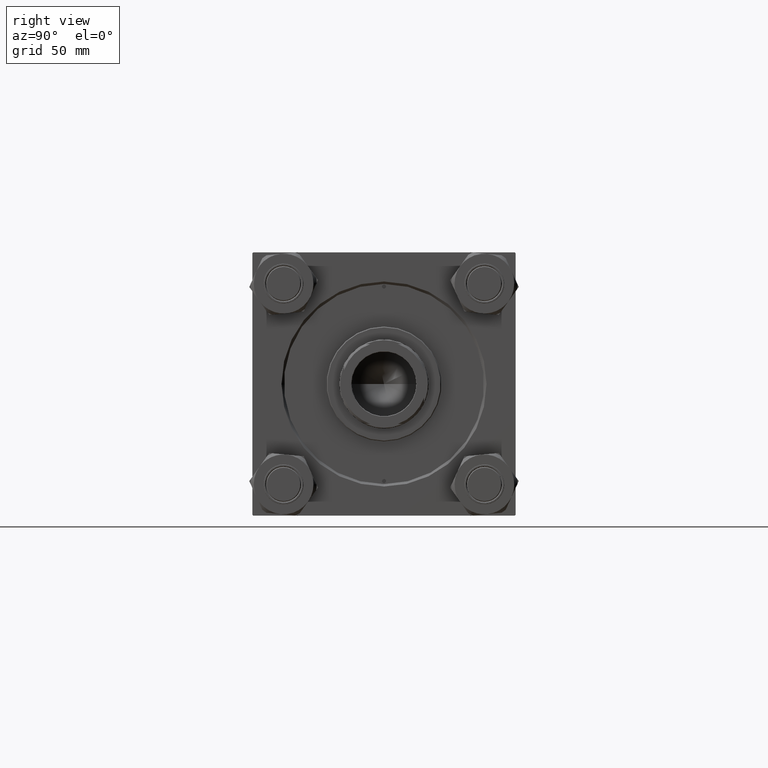
[diagram: clean part render]
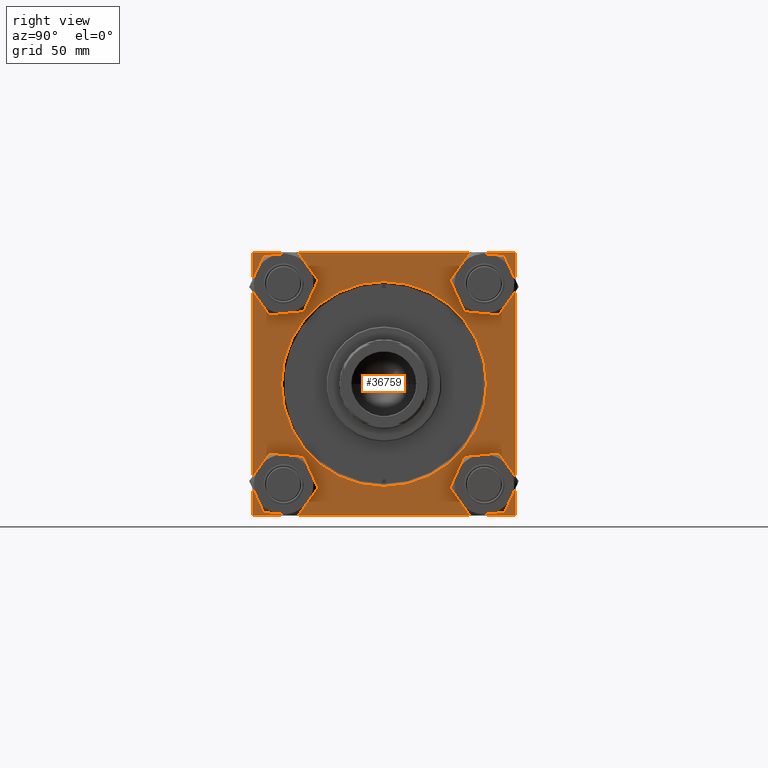
[diagram: same view with one face highlighted and labeled with its STEP entity id]
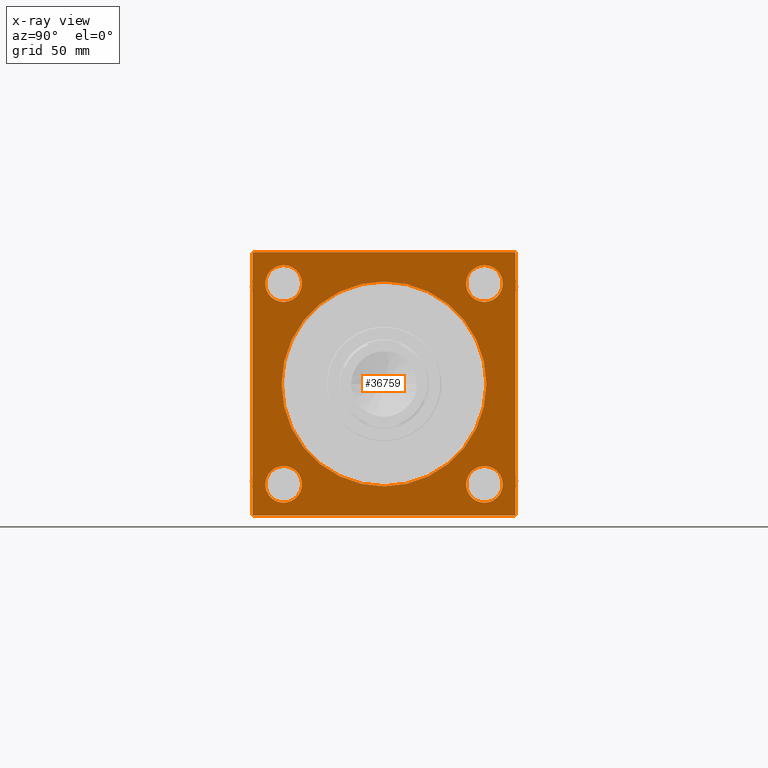
[diagram: x-ray of the same camera — body ghosted, the highlighted face saturated]
A machine part, right view. The second image highlights one B-rep face of the part: STEP entity #36759.
The next image is the same camera in x-ray: the body ghosted, the highlighted face saturated — about 0% of this face is hidden behind the body in this view.
In plain terms, the highlighted planar face has unit normal (-1, 0, 0).
Its self-contained STEP definition (entity closure, byte-faithful):
#684 = VERTEX_POINT ( 'NONE', #42051 ) ;
#864 = EDGE_LOOP ( 'NONE', ( #6996, #3208 ) ) ;
#1350 = DIRECTION ( 'NONE',  ( 0.000000000000000000, -1.000000000000000000, 0.000000000000000000 ) ) ;
#1365 = EDGE_CURVE ( 'NONE', #27444, #47342, #41619, .T. ) ;
#1606 = FACE_BOUND ( 'NONE', #36054, .T. ) ;
#1811 = EDGE_CURVE ( 'NONE', #26190, #6788, #6972, .T. ) ;
#1919 = CIRCLE ( 'NONE', #32889, 64.24999999999997158 ) ;
#2117 = DIRECTION ( 'NONE',  ( -1.000000000000000000, -0.000000000000000000, 0.000000000000000000 ) ) ;
#2161 = VERTEX_POINT ( 'NONE', #14343 ) ;
#2834 = CARTESIAN_POINT ( 'NONE',  ( 276.9999999999999432, -82.50000000000000000, -82.00000000000002842 ) ) ;
#2938 = VERTEX_POINT ( 'NONE', #41165 ) ;
#3082 = CARTESIAN_POINT ( 'NONE',  ( 276.9999999999999432, 82.00000000000001421, 82.50000000000000000 ) ) ;
#3110 = CARTESIAN_POINT ( 'NONE',  ( 276.9999999999999432, 62.95000000000000284, -62.95000000000000284 ) ) ;
#3115 = DIRECTION ( 'NONE',  ( 0.000000000000000000, 0.7071067811865574537, -0.7071067811865376918 ) ) ;
#3124 = CARTESIAN_POINT ( 'NONE',  ( 276.9999999999999432, 62.95000000000000284, 62.95000000000000284 ) ) ;
#3208 = ORIENTED_EDGE ( 'NONE', *, *, #38162, .T. ) ;
#3454 = CARTESIAN_POINT ( 'NONE',  ( 276.9999999999999432, -62.94999999999998153, -62.95000000000001705 ) ) ;
#4027 = CARTESIAN_POINT ( 'NONE',  ( 276.9999999999999432, 0.000000000000000000, 0.000000000000000000 ) ) ;
#4172 = CARTESIAN_POINT ( 'NONE',  ( 276.9999999999999432, 0.000000000000000000, 0.000000000000000000 ) ) ;
#4913 = CARTESIAN_POINT ( 'NONE',  ( 276.9999999999999432, 62.95000000000000284, -51.45000000000005258 ) ) ;
#5308 = ORIENTED_EDGE ( 'NONE', *, *, #45016, .T. ) ;
#5362 = ORIENTED_EDGE ( 'NONE', *, *, #23062, .T. ) ;
#5374 = CARTESIAN_POINT ( 'NONE',  ( 276.9999999999999432, 62.95000000000000284, -62.95000000000000284 ) ) ;
#5728 = EDGE_CURVE ( 'NONE', #46033, #18080, #39440, .T. ) ;
#5779 = DIRECTION ( 'NONE',  ( 0.000000000000000000, 0.000000000000000000, 1.000000000000000000 ) ) ;
#6788 = VERTEX_POINT ( 'NONE', #2834 ) ;
#6972 = LINE ( 'NONE', #42182, #45383 ) ;
#6996 = ORIENTED_EDGE ( 'NONE', *, *, #39920, .T. ) ;
#7116 = DIRECTION ( 'NONE',  ( 0.000000000000000000, 0.000000000000000000, -1.000000000000000000 ) ) ;
#7218 = EDGE_LOOP ( 'NONE', ( #11352, #43109 ) ) ;
#7830 = CARTESIAN_POINT ( 'NONE',  ( 276.9999999999999432, 82.50000000000001421, 82.50000000000000000 ) ) ;
#8570 = DIRECTION ( 'NONE',  ( -0.000000000000000000, 0.7071067811865474617, 0.7071067811865474617 ) ) ;
#9121 = VECTOR ( 'NONE', #1350, 1000.000000000000000 ) ;
#9213 = EDGE_CURVE ( 'NONE', #31072, #24679, #48083, .T. ) ;
#9511 = FACE_BOUND ( 'NONE', #37927, .T. ) ;
#9760 = PLANE ( 'NONE',  #39189 ) ;
#10010 = CIRCLE ( 'NONE', #12478, 11.49999999999995381 ) ;
#10022 = CARTESIAN_POINT ( 'NONE',  ( 276.9999999999999432, 62.95000000000000284, -74.44999999999996021 ) ) ;
#10259 = VERTEX_POINT ( 'NONE', #29070 ) ;
#10274 = CARTESIAN_POINT ( 'NONE',  ( 276.9999999999999432, -81.99999999999998579, -82.50000000000002842 ) ) ;
#10318 = ORIENTED_EDGE ( 'NONE', *, *, #1811, .T. ) ;
#10463 = VECTOR ( 'NONE', #8570, 1000.000000000000114 ) ;
#11023 = CARTESIAN_POINT ( 'NONE',  ( 276.9999999999999432, 0.000000000000000000, -64.24999999999997158 ) ) ;
#11352 = ORIENTED_EDGE ( 'NONE', *, *, #44492, .T. ) ;
#12478 = AXIS2_PLACEMENT_3D ( 'NONE', #3454, #42224, #26423 ) ;
#12652 = DIRECTION ( 'NONE',  ( 0.000000000000000000, 0.000000000000000000, 1.000000000000000000 ) ) ;
#13007 = CARTESIAN_POINT ( 'NONE',  ( 276.9999999999999432, -82.49999999999997158, 81.99999999999997158 ) ) ;
#13108 = FACE_BOUND ( 'NONE', #45236, .T. ) ;
#13392 = VERTEX_POINT ( 'NONE', #45958 ) ;
#13757 = CARTESIAN_POINT ( 'NONE',  ( 276.9999999999999432, 62.95000000000000284, 74.44999999999996021 ) ) ;
#14235 = EDGE_CURVE ( 'NONE', #46033, #46732, #36320, .T. ) ;
#14343 = CARTESIAN_POINT ( 'NONE',  ( 276.9999999999999432, -62.94999999999998153, -74.44999999999997442 ) ) ;
#14583 = DIRECTION ( 'NONE',  ( -1.000000000000000000, -0.000000000000000000, 0.000000000000000000 ) ) ;
#14795 = LINE ( 'NONE', #48974, #41661 ) ;
#15250 = LINE ( 'NONE', #7830, #29063 ) ;
#15779 = DIRECTION ( 'NONE',  ( -1.000000000000000000, -0.000000000000000000, 0.000000000000000000 ) ) ;
#16687 = CARTESIAN_POINT ( 'NONE',  ( 276.9999999999999432, 82.50000000000001421, -82.50000000000002842 ) ) ;
#16776 = EDGE_CURVE ( 'NONE', #24679, #31072, #45743, .T. ) ;
#16961 = VECTOR ( 'NONE', #33727, 1000.000000000000114 ) ;
#17184 = DIRECTION ( 'NONE',  ( -1.000000000000000000, -0.000000000000000000, 0.000000000000000000 ) ) ;
#17231 = VECTOR ( 'NONE', #3115, 999.9999999999998863 ) ;
#17279 = CARTESIAN_POINT ( 'NONE',  ( 276.9999999999999432, -62.94999999999998153, -62.95000000000001705 ) ) ;
#17378 = AXIS2_PLACEMENT_3D ( 'NONE', #39426, #31783, #12652 ) ;
#17618 = DIRECTION ( 'NONE',  ( 0.000000000000000000, 0.000000000000000000, 1.000000000000000000 ) ) ;
#17686 = DIRECTION ( 'NONE',  ( 0.000000000000000000, 0.000000000000000000, 1.000000000000000000 ) ) ;
#17975 = VERTEX_POINT ( 'NONE', #11023 ) ;
#18080 = VERTEX_POINT ( 'NONE', #40332 ) ;
#18297 = CARTESIAN_POINT ( 'NONE',  ( 276.9999999999999432, -81.99999999999998579, -82.50000000000002842 ) ) ;
#18684 = DIRECTION ( 'NONE',  ( -1.000000000000000000, -0.000000000000000000, 0.000000000000000000 ) ) ;
#18948 = LINE ( 'NONE', #10274, #17231 ) ;
#18975 = CIRCLE ( 'NONE', #47493, 11.49999999999995381 ) ;
#19232 = CARTESIAN_POINT ( 'NONE',  ( 276.9999999999999432, 82.00000000000001421, -82.50000000000002842 ) ) ;
#19337 = DIRECTION ( 'NONE',  ( 0.000000000000000000, 0.000000000000000000, 1.000000000000000000 ) ) ;
#19743 = DIRECTION ( 'NONE',  ( 0.000000000000000000, 0.000000000000000000, 1.000000000000000000 ) ) ;
#20853 = ORIENTED_EDGE ( 'NONE', *, *, #5728, .T. ) ;
#21499 = DIRECTION ( 'NONE',  ( 0.000000000000000000, 0.000000000000000000, 1.000000000000000000 ) ) ;
#22052 = EDGE_CURVE ( 'NONE', #47342, #2938, #15250, .T. ) ;
#22891 = DIRECTION ( 'NONE',  ( 0.000000000000000000, -1.000000000000000000, -1.682156097916904081E-16 ) ) ;
#23062 = EDGE_CURVE ( 'NONE', #17975, #684, #50284, .T. ) ;
#23369 = DIRECTION ( 'NONE',  ( -0.000000000000000000, -0.7071067811865574537, -0.7071067811865376918 ) ) ;
#23753 = AXIS2_PLACEMENT_3D ( 'NONE', #32763, #2117, #17686 ) ;
#23886 = LINE ( 'NONE', #43534, #41624 ) ;
#24252 = ORIENTED_EDGE ( 'NONE', *, *, #22052, .T. ) ;
#24287 = ORIENTED_EDGE ( 'NONE', *, *, #14235, .F. ) ;
#24508 = CIRCLE ( 'NONE', #44856, 11.49999999999995381 ) ;
#24679 = VERTEX_POINT ( 'NONE', #34532 ) ;
#25218 = VERTEX_POINT ( 'NONE', #13757 ) ;
#25323 = CARTESIAN_POINT ( 'NONE',  ( 276.9999999999999432, 0.000000000000000000, 0.000000000000000000 ) ) ;
#26125 = DIRECTION ( 'NONE',  ( 0.000000000000000000, -1.682156097916903834E-16, -1.000000000000000000 ) ) ;
#26190 = VERTEX_POINT ( 'NONE', #13007 ) ;
#26423 = DIRECTION ( 'NONE',  ( 0.000000000000000000, 0.000000000000000000, 1.000000000000000000 ) ) ;
#26817 = CARTESIAN_POINT ( 'NONE',  ( 276.9999999999999432, 82.00000000000001421, 82.50000000000000000 ) ) ;
#26893 = CIRCLE ( 'NONE', #48930, 11.49999999999995381 ) ;
#27101 = DIRECTION ( 'NONE',  ( -1.000000000000000000, -0.000000000000000000, 0.000000000000000000 ) ) ;
#27444 = VERTEX_POINT ( 'NONE', #38350 ) ;
#28983 = CARTESIAN_POINT ( 'NONE',  ( 276.9999999999999432, -62.94999999999998153, 74.44999999999997442 ) ) ;
#29063 = VECTOR ( 'NONE', #22891, 1000.000000000000000 ) ;
#29070 = CARTESIAN_POINT ( 'NONE',  ( 276.9999999999999432, 62.95000000000000284, 51.45000000000005258 ) ) ;
#29145 = FACE_BOUND ( 'NONE', #7218, .T. ) ;
#29263 = ORIENTED_EDGE ( 'NONE', *, *, #46088, .T. ) ;
#30165 = AXIS2_PLACEMENT_3D ( 'NONE', #44934, #14583, #37044 ) ;
#30816 = ORIENTED_EDGE ( 'NONE', *, *, #35679, .T. ) ;
#31072 = VERTEX_POINT ( 'NONE', #28983 ) ;
#31783 = DIRECTION ( 'NONE',  ( -1.000000000000000000, -0.000000000000000000, 0.000000000000000000 ) ) ;
#32230 = DIRECTION ( 'NONE',  ( -1.000000000000000000, -0.000000000000000000, 0.000000000000000000 ) ) ;
#32763 = CARTESIAN_POINT ( 'NONE',  ( 276.9999999999999432, -62.94999999999998153, 62.95000000000001705 ) ) ;
#32889 = AXIS2_PLACEMENT_3D ( 'NONE', #4172, #32230, #19743 ) ;
#33727 = DIRECTION ( 'NONE',  ( 0.000000000000000000, -0.7071067811865474617, 0.7071067811865474617 ) ) ;
#34532 = CARTESIAN_POINT ( 'NONE',  ( 276.9999999999999432, -62.94999999999998153, 51.45000000000006679 ) ) ;
#35679 = EDGE_CURVE ( 'NONE', #10259, #25218, #24508, .T. ) ;
#36054 = EDGE_LOOP ( 'NONE', ( #30816, #5308 ) ) ;
#36320 = LINE ( 'NONE', #16687, #9121 ) ;
#36368 = ORIENTED_EDGE ( 'NONE', *, *, #16776, .T. ) ;
#36759 = ADVANCED_FACE ( 'NONE', ( #29145, #40143, #1606, #13108, #9511, #48040 ), #9760, .F. ) ;
#36766 = DIRECTION ( 'NONE',  ( -1.000000000000000000, -0.000000000000000000, 0.000000000000000000 ) ) ;
#37044 = DIRECTION ( 'NONE',  ( 0.000000000000000000, 0.000000000000000000, 1.000000000000000000 ) ) ;
#37178 = EDGE_CURVE ( 'NONE', #27444, #18080, #14795, .T. ) ;
#37927 = EDGE_LOOP ( 'NONE', ( #5362, #29263 ) ) ;
#38162 = EDGE_CURVE ( 'NONE', #45210, #39913, #26893, .T. ) ;
#38249 = ORIENTED_EDGE ( 'NONE', *, *, #9213, .T. ) ;
#38350 = CARTESIAN_POINT ( 'NONE',  ( 276.9999999999999432, 82.50000000000001421, 82.00000000000000000 ) ) ;
#38369 = AXIS2_PLACEMENT_3D ( 'NONE', #3110, #18684, #48782 ) ;
#38579 = DIRECTION ( 'NONE',  ( 0.000000000000000000, 0.000000000000000000, 1.000000000000000000 ) ) ;
#38921 = ORIENTED_EDGE ( 'NONE', *, *, #37178, .F. ) ;
#39189 = AXIS2_PLACEMENT_3D ( 'NONE', #25323, #17184, #21499 ) ;
#39404 = ORIENTED_EDGE ( 'NONE', *, *, #39533, .T. ) ;
#39426 = CARTESIAN_POINT ( 'NONE',  ( 276.9999999999999432, 62.95000000000000284, 62.95000000000000284 ) ) ;
#39440 = LINE ( 'NONE', #43005, #10463 ) ;
#39533 = EDGE_CURVE ( 'NONE', #2938, #26190, #23886, .T. ) ;
#39913 = VERTEX_POINT ( 'NONE', #10022 ) ;
#39920 = EDGE_CURVE ( 'NONE', #39913, #45210, #48968, .T. ) ;
#40143 = FACE_BOUND ( 'NONE', #864, .T. ) ;
#40203 = CIRCLE ( 'NONE', #17378, 11.49999999999995381 ) ;
#40332 = CARTESIAN_POINT ( 'NONE',  ( 276.9999999999999432, 82.50000000000001421, -82.00000000000002842 ) ) ;
#40770 = EDGE_CURVE ( 'NONE', #6788, #46732, #18948, .T. ) ;
#41165 = CARTESIAN_POINT ( 'NONE',  ( 276.9999999999999432, -81.99999999999995737, 82.49999999999997158 ) ) ;
#41619 = LINE ( 'NONE', #3082, #16961 ) ;
#41624 = VECTOR ( 'NONE', #23369, 999.9999999999998863 ) ;
#41661 = VECTOR ( 'NONE', #7116, 1000.000000000000000 ) ;
#42051 = CARTESIAN_POINT ( 'NONE',  ( 276.9999999999999432, 7.868355684521741158E-15, 64.24999999999997158 ) ) ;
#42182 = CARTESIAN_POINT ( 'NONE',  ( 276.9999999999999432, -82.49999999999997158, 82.49999999999997158 ) ) ;
#42224 = DIRECTION ( 'NONE',  ( -1.000000000000000000, -0.000000000000000000, 0.000000000000000000 ) ) ;
#43005 = CARTESIAN_POINT ( 'NONE',  ( 276.9999999999999432, 82.50000000000001421, -82.00000000000002842 ) ) ;
#43109 = ORIENTED_EDGE ( 'NONE', *, *, #44789, .T. ) ;
#43534 = CARTESIAN_POINT ( 'NONE',  ( 276.9999999999999432, -82.49999999999997158, 81.99999999999997158 ) ) ;
#43590 = ORIENTED_EDGE ( 'NONE', *, *, #40770, .T. ) ;
#44492 = EDGE_CURVE ( 'NONE', #2161, #13392, #10010, .T. ) ;
#44789 = EDGE_CURVE ( 'NONE', #13392, #2161, #18975, .T. ) ;
#44856 = AXIS2_PLACEMENT_3D ( 'NONE', #3124, #27101, #38579 ) ;
#44934 = CARTESIAN_POINT ( 'NONE',  ( 276.9999999999999432, -62.94999999999998153, 62.95000000000001705 ) ) ;
#45016 = EDGE_CURVE ( 'NONE', #25218, #10259, #40203, .T. ) ;
#45210 = VERTEX_POINT ( 'NONE', #4913 ) ;
#45236 = EDGE_LOOP ( 'NONE', ( #36368, #38249 ) ) ;
#45383 = VECTOR ( 'NONE', #26125, 1000.000000000000000 ) ;
#45551 = DIRECTION ( 'NONE',  ( -1.000000000000000000, -0.000000000000000000, 0.000000000000000000 ) ) ;
#45743 = CIRCLE ( 'NONE', #23753, 11.49999999999995381 ) ;
#45958 = CARTESIAN_POINT ( 'NONE',  ( 276.9999999999999432, -62.94999999999998153, -51.45000000000006679 ) ) ;
#46033 = VERTEX_POINT ( 'NONE', #19232 ) ;
#46088 = EDGE_CURVE ( 'NONE', #684, #17975, #1919, .T. ) ;
#46732 = VERTEX_POINT ( 'NONE', #18297 ) ;
#47156 = ORIENTED_EDGE ( 'NONE', *, *, #1365, .T. ) ;
#47342 = VERTEX_POINT ( 'NONE', #26817 ) ;
#47493 = AXIS2_PLACEMENT_3D ( 'NONE', #17279, #45551, #5779 ) ;
#47855 = AXIS2_PLACEMENT_3D ( 'NONE', #4027, #15779, #19337 ) ;
#48040 = FACE_OUTER_BOUND ( 'NONE', #49327, .T. ) ;
#48083 = CIRCLE ( 'NONE', #30165, 11.49999999999995381 ) ;
#48782 = DIRECTION ( 'NONE',  ( 0.000000000000000000, 0.000000000000000000, 1.000000000000000000 ) ) ;
#48930 = AXIS2_PLACEMENT_3D ( 'NONE', #5374, #36766, #17618 ) ;
#48968 = CIRCLE ( 'NONE', #38369, 11.49999999999995381 ) ;
#48974 = CARTESIAN_POINT ( 'NONE',  ( 276.9999999999999432, 82.50000000000001421, 82.50000000000000000 ) ) ;
#49327 = EDGE_LOOP ( 'NONE', ( #10318, #43590, #24287, #20853, #38921, #47156, #24252, #39404 ) ) ;
#50284 = CIRCLE ( 'NONE', #47855, 64.24999999999997158 ) ;